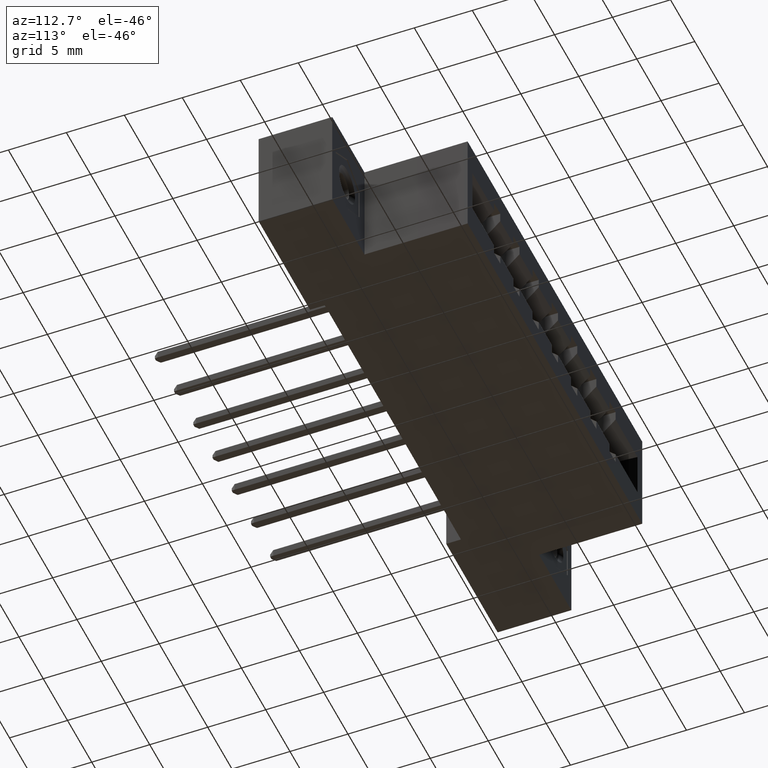
[diagram: clean part render]
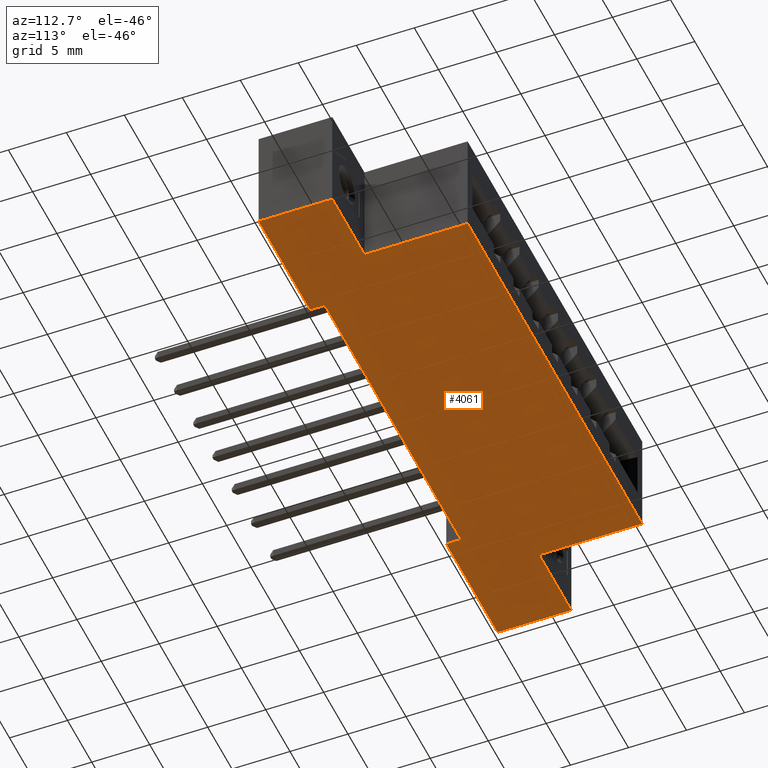
[diagram: same view with one face highlighted and labeled with its STEP entity id]
A machine part, auxiliary view. The second image highlights one B-rep face of the part: STEP entity #4061.
In plain terms, the highlighted planar face has unit normal (0, 0, 1).
Its self-contained STEP definition (entity closure, byte-faithful):
#77 = VERTEX_POINT ( 'NONE', #1864 ) ;
#153 = CARTESIAN_POINT ( 'NONE',  ( 0.0000000000000000000, 0.5999999999999999800, -0.3700000000000000000 ) ) ;
#208 = LINE ( 'NONE', #3885, #7994 ) ;
#306 = LINE ( 'NONE', #8344, #6304 ) ;
#493 = ORIENTED_EDGE ( 'NONE', *, *, #1764, .F. ) ;
#628 = VECTOR ( 'NONE', #5884, 39.37007874015748100 ) ;
#772 = EDGE_CURVE ( 'NONE', #5307, #77, #208, .T. ) ;
#899 = EDGE_CURVE ( 'NONE', #6420, #7991, #7041, .T. ) ;
#946 = EDGE_CURVE ( 'NONE', #4981, #3684, #2674, .T. ) ;
#1011 = VECTOR ( 'NONE', #6113, 39.37007874015748100 ) ;
#1121 = VERTEX_POINT ( 'NONE', #7771 ) ;
#1150 = CARTESIAN_POINT ( 'NONE',  ( 0.2615000000000001200, 0.2500000000000000000, -0.3700000000000000000 ) ) ;
#1245 = VECTOR ( 'NONE', #2158, 39.37007874015748100 ) ;
#1654 = ORIENTED_EDGE ( 'NONE', *, *, #946, .F. ) ;
#1764 = EDGE_CURVE ( 'NONE', #4718, #7991, #5127, .T. ) ;
#1864 = CARTESIAN_POINT ( 'NONE',  ( 1.522500000000000200, 0.05000000000000000300, -0.3700000000000000000 ) ) ;
#1878 = EDGE_LOOP ( 'NONE', ( #9603, #1654, #7862, #5932, #7202, #6573, #7310, #7524, #8232, #493, #5173, #4676 ) ) ;
#1975 = VECTOR ( 'NONE', #9407, 39.37007874015748100 ) ;
#2138 = EDGE_CURVE ( 'NONE', #6966, #4981, #306, .T. ) ;
#2158 = DIRECTION ( 'NONE',  ( -0.0000000000000000000, -1.000000000000000000, -0.0000000000000000000 ) ) ;
#2215 = LINE ( 'NONE', #2463, #1975 ) ;
#2315 = CARTESIAN_POINT ( 'NONE',  ( 0.2615000000000000700, 0.2500000000000000000, -0.3700000000000000000 ) ) ;
#2463 = CARTESIAN_POINT ( 'NONE',  ( 0.4174999999999997000, 0.05000000000000000300, -0.3700000000000000000 ) ) ;
#2674 = LINE ( 'NONE', #4508, #6565 ) ;
#2737 = LINE ( 'NONE', #8919, #628 ) ;
#2857 = VERTEX_POINT ( 'NONE', #4630 ) ;
#2862 = FACE_OUTER_BOUND ( 'NONE', #1878, .T. ) ;
#3164 = CARTESIAN_POINT ( 'NONE',  ( 1.678500000000000100, 0.2500000000000000000, -0.3700000000000002200 ) ) ;
#3168 = CARTESIAN_POINT ( 'NONE',  ( 1.522500000000000200, 0.0000000000000000000, -0.3700000000000000000 ) ) ;
#3298 = EDGE_CURVE ( 'NONE', #3826, #4718, #7845, .T. ) ;
#3305 = CARTESIAN_POINT ( 'NONE',  ( 1.678500000000000100, 0.5999999999999999800, -0.3700000000000002200 ) ) ;
#3344 = LINE ( 'NONE', #7574, #1245 ) ;
#3391 = DIRECTION ( 'NONE',  ( -1.000000000000000000, -0.0000000000000000000, -0.0000000000000000000 ) ) ;
#3684 = VERTEX_POINT ( 'NONE', #3305 ) ;
#3768 = CARTESIAN_POINT ( 'NONE',  ( 0.0000000000000000000, 0.5999999999999999800, -0.3700000000000000000 ) ) ;
#3772 = DIRECTION ( 'NONE',  ( -1.000000000000000000, 0.0000000000000000000, -7.835128088903241300E-016 ) ) ;
#3800 = VECTOR ( 'NONE', #8386, 39.37007874015748100 ) ;
#3826 = VERTEX_POINT ( 'NONE', #1150 ) ;
#3885 = CARTESIAN_POINT ( 'NONE',  ( 0.4174999999999997000, 0.05000000000000000300, -0.3700000000000000000 ) ) ;
#4061 = ADVANCED_FACE ( 'NONE', ( #2862 ), #9143, .F. ) ;
#4071 = EDGE_CURVE ( 'NONE', #3684, #2857, #7000, .T. ) ;
#4395 = CARTESIAN_POINT ( 'NONE',  ( 0.0000000000000000000, 0.2500000000000000000, -0.3700000000000000000 ) ) ;
#4508 = CARTESIAN_POINT ( 'NONE',  ( 1.678500000000000100, 0.2500000000000000000, -0.3700000000000002200 ) ) ;
#4576 = CARTESIAN_POINT ( 'NONE',  ( 1.940000000000000200, 0.5999999999999999800, -0.3700000000000000000 ) ) ;
#4584 = CARTESIAN_POINT ( 'NONE',  ( 0.0000000000000000000, 0.0000000000000000000, -0.3700000000000000000 ) ) ;
#4630 = CARTESIAN_POINT ( 'NONE',  ( 0.2615000000000000700, 0.5999999999999999800, -0.3700000000000000000 ) ) ;
#4676 = ORIENTED_EDGE ( 'NONE', *, *, #7063, .T. ) ;
#4718 = VERTEX_POINT ( 'NONE', #4736 ) ;
#4736 = CARTESIAN_POINT ( 'NONE',  ( 0.0000000000000000000, 0.2500000000000000000, -0.3700000000000000000 ) ) ;
#4981 = VERTEX_POINT ( 'NONE', #3164 ) ;
#5001 = VECTOR ( 'NONE', #3391, 39.37007874015748100 ) ;
#5127 = LINE ( 'NONE', #153, #8937 ) ;
#5173 = ORIENTED_EDGE ( 'NONE', *, *, #3298, .F. ) ;
#5307 = VERTEX_POINT ( 'NONE', #9744 ) ;
#5348 = DIRECTION ( 'NONE',  ( 1.000000000000000000, 0.0000000000000000000, -0.0000000000000000000 ) ) ;
#5884 = DIRECTION ( 'NONE',  ( -1.000000000000000000, -0.0000000000000000000, -0.0000000000000000000 ) ) ;
#5932 = ORIENTED_EDGE ( 'NONE', *, *, #9752, .T. ) ;
#6029 = DIRECTION ( 'NONE',  ( 1.000000000000000000, 0.0000000000000000000, 0.0000000000000000000 ) ) ;
#6084 = CARTESIAN_POINT ( 'NONE',  ( 0.0000000000000000000, 0.5999999999999999800, -0.3700000000000000000 ) ) ;
#6113 = DIRECTION ( 'NONE',  ( -1.000000000000000000, -0.0000000000000000000, -0.0000000000000000000 ) ) ;
#6304 = VECTOR ( 'NONE', #3772, 39.37007874015748100 ) ;
#6392 = DIRECTION ( 'NONE',  ( -0.0000000000000000000, 1.000000000000000000, -0.0000000000000000000 ) ) ;
#6402 = AXIS2_PLACEMENT_3D ( 'NONE', #6084, #9908, #5348 ) ;
#6420 = VERTEX_POINT ( 'NONE', #8535 ) ;
#6565 = VECTOR ( 'NONE', #6392, 39.37007874015748100 ) ;
#6573 = ORIENTED_EDGE ( 'NONE', *, *, #7605, .F. ) ;
#6642 = VECTOR ( 'NONE', #9265, 39.37007874015748100 ) ;
#6966 = VERTEX_POINT ( 'NONE', #8390 ) ;
#7000 = LINE ( 'NONE', #3768, #1011 ) ;
#7041 = LINE ( 'NONE', #4584, #5001 ) ;
#7051 = DIRECTION ( 'NONE',  ( -0.0000000000000000000, -1.000000000000000000, -0.0000000000000000000 ) ) ;
#7063 = EDGE_CURVE ( 'NONE', #3826, #2857, #8666, .T. ) ;
#7202 = ORIENTED_EDGE ( 'NONE', *, *, #7472, .T. ) ;
#7310 = ORIENTED_EDGE ( 'NONE', *, *, #772, .F. ) ;
#7472 = EDGE_CURVE ( 'NONE', #1121, #9891, #2737, .T. ) ;
#7524 = ORIENTED_EDGE ( 'NONE', *, *, #9279, .T. ) ;
#7574 = CARTESIAN_POINT ( 'NONE',  ( 1.522500000000000200, 0.05000000000000000300, -0.3700000000000000000 ) ) ;
#7605 = EDGE_CURVE ( 'NONE', #77, #9891, #3344, .T. ) ;
#7771 = CARTESIAN_POINT ( 'NONE',  ( 1.940000000000000200, 0.0000000000000000000, -0.3700000000000000000 ) ) ;
#7845 = LINE ( 'NONE', #4395, #8075 ) ;
#7862 = ORIENTED_EDGE ( 'NONE', *, *, #2138, .F. ) ;
#7899 = LINE ( 'NONE', #4576, #3800 ) ;
#7991 = VERTEX_POINT ( 'NONE', #8008 ) ;
#7994 = VECTOR ( 'NONE', #6029, 39.37007874015748100 ) ;
#8008 = CARTESIAN_POINT ( 'NONE',  ( 0.0000000000000000000, 0.0000000000000000000, -0.3700000000000000000 ) ) ;
#8075 = VECTOR ( 'NONE', #9760, 39.37007874015748100 ) ;
#8232 = ORIENTED_EDGE ( 'NONE', *, *, #899, .T. ) ;
#8344 = CARTESIAN_POINT ( 'NONE',  ( 1.940000000000000200, 0.2500000000000000000, -0.3700000000000000000 ) ) ;
#8386 = DIRECTION ( 'NONE',  ( -0.0000000000000000000, -1.000000000000000000, -0.0000000000000000000 ) ) ;
#8390 = CARTESIAN_POINT ( 'NONE',  ( 1.940000000000000200, 0.2500000000000001100, -0.3700000000000000000 ) ) ;
#8535 = CARTESIAN_POINT ( 'NONE',  ( 0.4174999999999997000, 0.0000000000000000000, -0.3700000000000000000 ) ) ;
#8666 = LINE ( 'NONE', #2315, #6642 ) ;
#8919 = CARTESIAN_POINT ( 'NONE',  ( 0.0000000000000000000, 0.0000000000000000000, -0.3700000000000000000 ) ) ;
#8937 = VECTOR ( 'NONE', #7051, 39.37007874015748100 ) ;
#9143 = PLANE ( 'NONE',  #6402 ) ;
#9265 = DIRECTION ( 'NONE',  ( -0.0000000000000000000, 1.000000000000000000, -0.0000000000000000000 ) ) ;
#9279 = EDGE_CURVE ( 'NONE', #5307, #6420, #2215, .T. ) ;
#9407 = DIRECTION ( 'NONE',  ( -0.0000000000000000000, -1.000000000000000000, -0.0000000000000000000 ) ) ;
#9603 = ORIENTED_EDGE ( 'NONE', *, *, #4071, .F. ) ;
#9744 = CARTESIAN_POINT ( 'NONE',  ( 0.4174999999999997000, 0.05000000000000000300, -0.3700000000000000000 ) ) ;
#9752 = EDGE_CURVE ( 'NONE', #6966, #1121, #7899, .T. ) ;
#9760 = DIRECTION ( 'NONE',  ( -1.000000000000000000, -0.0000000000000000000, -0.0000000000000000000 ) ) ;
#9891 = VERTEX_POINT ( 'NONE', #3168 ) ;
#9908 = DIRECTION ( 'NONE',  ( 0.0000000000000000000, 0.0000000000000000000, 1.000000000000000000 ) ) ;